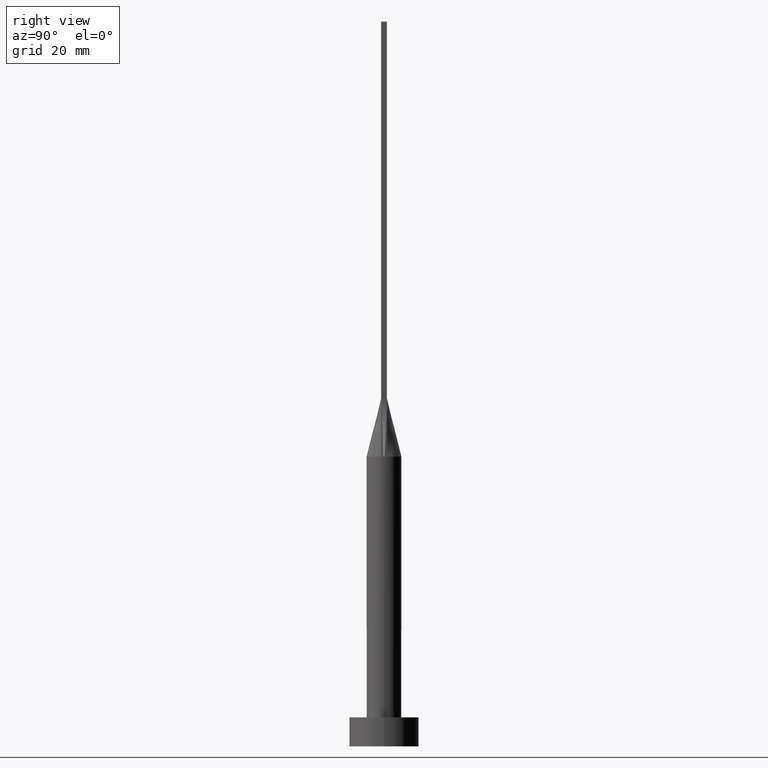
[diagram: clean part render]
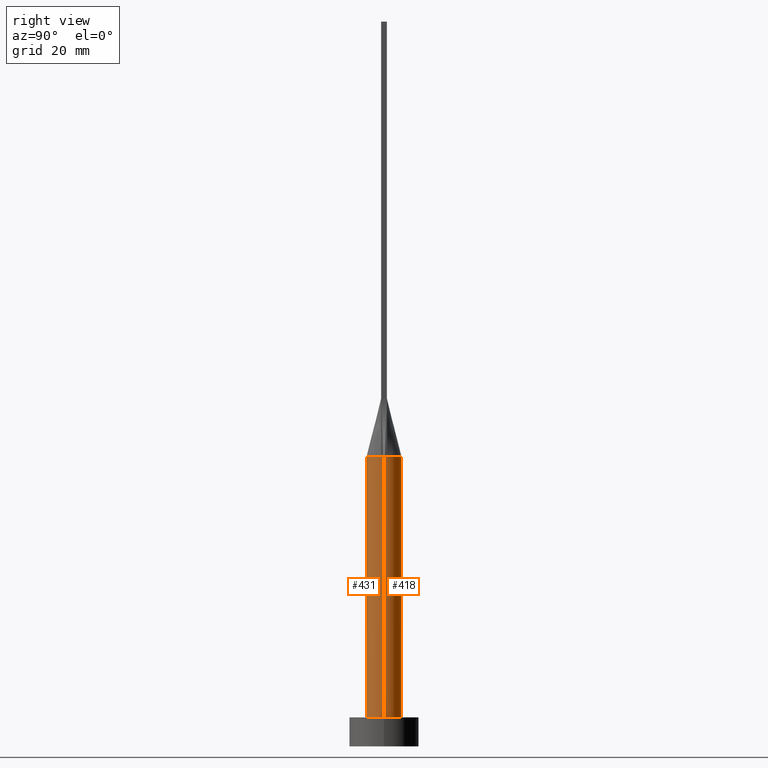
[diagram: same view with one multi-face feature highlighted, each face labeled with its STEP entity id]
A machine part, right view. The highlighted faces form ONE feature: a constant-radius fillet chain: 2 tangent blend faces with common blend radius 3 mm. The faces share edges in the B-rep.
Their STEP definitions:
[1] entity #418 (Cylinder):
#4 = ORIENTED_EDGE ( 'NONE', *, *, #206, .F. ) ;
#6 = CARTESIAN_POINT ( 'NONE',  ( 2.951871110830718514, 0.5367036202482695639, 49.99999999999999289 ) ) ;
#16 = CARTESIAN_POINT ( 'NONE',  ( -3.000000000000000444, 0.000000000000000000, 5.000000000000000000 ) ) ;
#19 = EDGE_CURVE ( 'NONE', #549, #546, #68, .T. ) ;
#24 = CARTESIAN_POINT ( 'NONE',  ( 0.8331239790496237640, 2.909606296598776787, 49.99999999999998579 ) ) ;
#33 = CARTESIAN_POINT ( 'NONE',  ( 0.000000000000000000, 0.000000000000000000, 49.99999999999999289 ) ) ;
#38 = EDGE_CURVE ( 'NONE', #286, #57, #346, .T. ) ;
#41 = VERTEX_POINT ( 'NONE', #461 ) ;
#57 = VERTEX_POINT ( 'NONE', #16 ) ;
#63 = CARTESIAN_POINT ( 'NONE',  ( -2.382399439808186692, 1.857547746650221265, 49.99999999999999289 ) ) ;
#68 = B_SPLINE_CURVE_WITH_KNOTS ( 'NONE', 3,
 ( #239, #317, #190, #279, #364, #370, #510, #24, #275, #515, #360, #413, #189, #63, #368, #143, #554, #315 ),
 .UNSPECIFIED., .F., .F.,
 ( 4, 2, 2, 2, 2, 2, 2, 2, 4 ),
 ( 0.000000000000000000, 0.1250000000000000000, 0.2500000000000000000, 0.3750000000000000000, 0.5000000000000000000, 0.6250000000000000000, 0.7500000000000000000, 0.8750000000000000000, 1.000000000000000000 ),
 .UNSPECIFIED. ) ;
#71 = VECTOR ( 'NONE', #398, 1000.000000000000000 ) ;
#87 = CARTESIAN_POINT ( 'NONE',  ( 2.999804865149861666, 7.183978618307598805E-16, 49.99999999999999289 ) ) ;
#114 = DIRECTION ( 'NONE',  ( -0.000000000000000000, -0.000000000000000000, -1.000000000000000000 ) ) ;
#133 = DIRECTION ( 'NONE',  ( 0.000000000000000000, 0.000000000000000000, 1.000000000000000000 ) ) ;
#140 = ORIENTED_EDGE ( 'NONE', *, *, #38, .T. ) ;
#142 = VERTEX_POINT ( 'NONE', #87 ) ;
#143 = CARTESIAN_POINT ( 'NONE',  ( -2.829409566978765334, 1.041313647073049298, 50.00000000000002132 ) ) ;
#149 = DIRECTION ( 'NONE',  ( 1.000000000000000000, 0.000000000000000000, 0.000000000000000000 ) ) ;
#156 = CIRCLE ( 'NONE', #440, 3.000000000000000444 ) ;
#189 = CARTESIAN_POINT ( 'NONE',  ( -1.882426928433513336, 2.362790634184935623, 50.00000000000000000 ) ) ;
#190 = CARTESIAN_POINT ( 'NONE',  ( 2.829409566978765778, 1.041313647073049298, 50.00000000000002132 ) ) ;
#192 = CIRCLE ( 'NONE', #345, 3.000000000000000444 ) ;
#193 = DIRECTION ( 'NONE',  ( -1.000000000000000000, 0.000000000000000000, 0.000000000000000000 ) ) ;
#206 = EDGE_CURVE ( 'NONE', #41, #57, #478, .T. ) ;
#210 = EDGE_CURVE ( 'NONE', #546, #41, #192, .T. ) ;
#216 = EDGE_CURVE ( 'NONE', #142, #286, #230, .T. ) ;
#230 = LINE ( 'NONE', #299, #71 ) ;
#234 = ORIENTED_EDGE ( 'NONE', *, *, #556, .F. ) ;
#239 = CARTESIAN_POINT ( 'NONE',  ( 2.951871110830718514, 0.5367036202482695639, 49.99999999999999289 ) ) ;
#250 = CARTESIAN_POINT ( 'NONE',  ( -3.000000000000000444, 0.000000000000000000, 49.99999999999999289 ) ) ;
#253 = ORIENTED_EDGE ( 'NONE', *, *, #216, .T. ) ;
#275 = CARTESIAN_POINT ( 'NONE',  ( 0.4172881767044975820, 3.000000000000000000, 50.00000000000000000 ) ) ;
#279 = CARTESIAN_POINT ( 'NONE',  ( 2.567367750129863957, 1.580669302822274913, 49.99999999999999289 ) ) ;
#286 = VERTEX_POINT ( 'NONE', #305 ) ;
#287 = DIRECTION ( 'NONE',  ( 1.000000000000000000, 0.000000000000000000, 0.000000000000000000 ) ) ;
#290 = EDGE_LOOP ( 'NONE', ( #234, #253, #140, #4, #568, #348 ) ) ;
#297 = DIRECTION ( 'NONE',  ( 0.000000000000000000, 0.000000000000000000, 1.000000000000000000 ) ) ;
#299 = CARTESIAN_POINT ( 'NONE',  ( 3.000000000000000444, 3.673940397442059868E-16, 49.99999999999999289 ) ) ;
#305 = CARTESIAN_POINT ( 'NONE',  ( 3.000000000000000444, 3.673940397442059868E-16, 5.000000000000000000 ) ) ;
#315 = CARTESIAN_POINT ( 'NONE',  ( -2.951881273711814302, 0.5367053345652096352, 49.99999999999999289 ) ) ;
#317 = CARTESIAN_POINT ( 'NONE',  ( 2.907609730299723250, 0.7786563145999496616, 49.99999999999999289 ) ) ;
#319 = AXIS2_PLACEMENT_3D ( 'NONE', #467, #114, #193 ) ;
#327 = FACE_OUTER_BOUND ( 'NONE', #290, .T. ) ;
#341 = CARTESIAN_POINT ( 'NONE',  ( -2.951881273711814302, 0.5367053345652096352, 49.99999999999999289 ) ) ;
#345 = AXIS2_PLACEMENT_3D ( 'NONE', #33, #133, #351 ) ;
#346 = CIRCLE ( 'NONE', #375, 3.000000000000000444 ) ;
#348 = ORIENTED_EDGE ( 'NONE', *, *, #19, .F. ) ;
#351 = DIRECTION ( 'NONE',  ( 1.000000000000000000, 0.000000000000000000, 0.000000000000000000 ) ) ;
#360 = CARTESIAN_POINT ( 'NONE',  ( -0.8331239790496237640, 2.909606296598777231, 50.00000000000000000 ) ) ;
#364 = CARTESIAN_POINT ( 'NONE',  ( 2.382399439808187580, 1.857547746650221709, 50.00000000000000000 ) ) ;
#368 = CARTESIAN_POINT ( 'NONE',  ( -2.567367750129864401, 1.580669302822275357, 50.00000000000001421 ) ) ;
#370 = CARTESIAN_POINT ( 'NONE',  ( 1.882426928433512892, 2.362790634184934291, 49.99999999999998579 ) ) ;
#375 = AXIS2_PLACEMENT_3D ( 'NONE', #470, #560, #149 ) ;
#398 = DIRECTION ( 'NONE',  ( -0.000000000000000000, -0.000000000000000000, -1.000000000000000000 ) ) ;
#413 = CARTESIAN_POINT ( 'NONE',  ( -1.566158656300002061, 2.589797565249319700, 49.99999999999998579 ) ) ;
#418 = ADVANCED_FACE ( 'NONE', ( #327 ), #513, .T. ) ;
#428 = DIRECTION ( 'NONE',  ( -0.000000000000000000, -0.000000000000000000, -1.000000000000000000 ) ) ;
#440 = AXIS2_PLACEMENT_3D ( 'NONE', #572, #297, #287 ) ;
#449 = VECTOR ( 'NONE', #428, 1000.000000000000000 ) ;
#461 = CARTESIAN_POINT ( 'NONE',  ( -2.999804865149861666, -2.046477192139110915E-15, 49.99999999999999289 ) ) ;
#467 = CARTESIAN_POINT ( 'NONE',  ( 0.000000000000000000, 0.000000000000000000, 49.99999999999999289 ) ) ;
#470 = CARTESIAN_POINT ( 'NONE',  ( 0.000000000000000000, 0.000000000000000000, 5.000000000000000000 ) ) ;
#478 = LINE ( 'NONE', #250, #449 ) ;
#510 = CARTESIAN_POINT ( 'NONE',  ( 1.566158656300002061, 2.589797565249318811, 50.00000000000000000 ) ) ;
#513 = CYLINDRICAL_SURFACE ( 'NONE', #319, 3.000000000000000444 ) ;
#515 = CARTESIAN_POINT ( 'NONE',  ( -0.4172881767044976375, 2.999999999999999556, 49.99999999999998579 ) ) ;
#546 = VERTEX_POINT ( 'NONE', #341 ) ;
#549 = VERTEX_POINT ( 'NONE', #6 ) ;
#554 = CARTESIAN_POINT ( 'NONE',  ( -2.907609730299723250, 0.7786563145999495505, 50.00000000000000000 ) ) ;
#556 = EDGE_CURVE ( 'NONE', #142, #549, #156, .T. ) ;
#560 = DIRECTION ( 'NONE',  ( 0.000000000000000000, 0.000000000000000000, 1.000000000000000000 ) ) ;
#568 = ORIENTED_EDGE ( 'NONE', *, *, #210, .F. ) ;
#572 = CARTESIAN_POINT ( 'NONE',  ( 0.000000000000000000, 0.000000000000000000, 49.99999999999999289 ) ) ;
[2] entity #431 (Cylinder):
#7 = CARTESIAN_POINT ( 'NONE',  ( 2.951896064709005785, -0.5367080392066733152, 49.99999999999999289 ) ) ;
#16 = CARTESIAN_POINT ( 'NONE',  ( -3.000000000000000444, 0.000000000000000000, 5.000000000000000000 ) ) ;
#34 = ORIENTED_EDGE ( 'NONE', *, *, #337, .T. ) ;
#41 = VERTEX_POINT ( 'NONE', #461 ) ;
#52 = CIRCLE ( 'NONE', #509, 3.000000000000000444 ) ;
#57 = VERTEX_POINT ( 'NONE', #16 ) ;
#71 = VECTOR ( 'NONE', #398, 1000.000000000000000 ) ;
#74 = CYLINDRICAL_SURFACE ( 'NONE', #186, 3.000000000000000444 ) ;
#87 = CARTESIAN_POINT ( 'NONE',  ( 2.999804865149861666, 7.183978618307598805E-16, 49.99999999999999289 ) ) ;
#105 = CIRCLE ( 'NONE', #426, 3.000000000000000444 ) ;
#107 = CARTESIAN_POINT ( 'NONE',  ( 0.000000000000000000, 0.000000000000000000, 49.99999999999999289 ) ) ;
#112 = EDGE_CURVE ( 'NONE', #41, #484, #52, .T. ) ;
#142 = VERTEX_POINT ( 'NONE', #87 ) ;
#148 = DIRECTION ( 'NONE',  ( -0.000000000000000000, -0.000000000000000000, -1.000000000000000000 ) ) ;
#157 = CARTESIAN_POINT ( 'NONE',  ( 0.000000000000000000, 0.000000000000000000, 49.99999999999999289 ) ) ;
#160 = DIRECTION ( 'NONE',  ( 0.000000000000000000, 0.000000000000000000, 1.000000000000000000 ) ) ;
#168 = ORIENTED_EDGE ( 'NONE', *, *, #216, .F. ) ;
#186 = AXIS2_PLACEMENT_3D ( 'NONE', #278, #148, #322 ) ;
#204 = AXIS2_PLACEMENT_3D ( 'NONE', #569, #160, #469 ) ;
#206 = EDGE_CURVE ( 'NONE', #41, #57, #478, .T. ) ;
#216 = EDGE_CURVE ( 'NONE', #142, #286, #230, .T. ) ;
#229 = VERTEX_POINT ( 'NONE', #7 ) ;
#230 = LINE ( 'NONE', #299, #71 ) ;
#233 = DIRECTION ( 'NONE',  ( 0.000000000000000000, 0.000000000000000000, 1.000000000000000000 ) ) ;
#243 = AXIS2_PLACEMENT_3D ( 'NONE', #157, #233, #371 ) ;
#250 = CARTESIAN_POINT ( 'NONE',  ( -3.000000000000000444, 0.000000000000000000, 49.99999999999999289 ) ) ;
#263 = EDGE_LOOP ( 'NONE', ( #168, #358, #444, #424, #333, #34 ) ) ;
#277 = DIRECTION ( 'NONE',  ( 0.000000000000000000, 0.000000000000000000, 1.000000000000000000 ) ) ;
#278 = CARTESIAN_POINT ( 'NONE',  ( 0.000000000000000000, 0.000000000000000000, 49.99999999999999289 ) ) ;
#280 = DIRECTION ( 'NONE',  ( 1.000000000000000000, 3.552713678800500929E-15, 0.000000000000000000 ) ) ;
#286 = VERTEX_POINT ( 'NONE', #305 ) ;
#299 = CARTESIAN_POINT ( 'NONE',  ( 3.000000000000000444, 3.673940397442059868E-16, 49.99999999999999289 ) ) ;
#305 = CARTESIAN_POINT ( 'NONE',  ( 3.000000000000000444, 3.673940397442059868E-16, 5.000000000000000000 ) ) ;
#322 = DIRECTION ( 'NONE',  ( -1.000000000000000000, 0.000000000000000000, 0.000000000000000000 ) ) ;
#333 = ORIENTED_EDGE ( 'NONE', *, *, #206, .T. ) ;
#337 = EDGE_CURVE ( 'NONE', #57, #286, #415, .T. ) ;
#358 = ORIENTED_EDGE ( 'NONE', *, *, #402, .F. ) ;
#371 = DIRECTION ( 'NONE',  ( 1.000000000000000000, 0.000000000000000000, 0.000000000000000000 ) ) ;
#379 = CARTESIAN_POINT ( 'NONE',  ( 0.000000000000000000, 0.000000000000000000, 49.99999999999999289 ) ) ;
#386 = DIRECTION ( 'NONE',  ( 1.000000000000000000, 0.000000000000000000, 0.000000000000000000 ) ) ;
#398 = DIRECTION ( 'NONE',  ( -0.000000000000000000, -0.000000000000000000, -1.000000000000000000 ) ) ;
#402 = EDGE_CURVE ( 'NONE', #229, #142, #105, .T. ) ;
#415 = CIRCLE ( 'NONE', #204, 3.000000000000000444 ) ;
#424 = ORIENTED_EDGE ( 'NONE', *, *, #112, .F. ) ;
#426 = AXIS2_PLACEMENT_3D ( 'NONE', #379, #518, #280 ) ;
#427 = EDGE_CURVE ( 'NONE', #484, #229, #503, .T. ) ;
#428 = DIRECTION ( 'NONE',  ( -0.000000000000000000, -0.000000000000000000, -1.000000000000000000 ) ) ;
#431 = ADVANCED_FACE ( 'NONE', ( #558 ), #74, .T. ) ;
#444 = ORIENTED_EDGE ( 'NONE', *, *, #427, .F. ) ;
#449 = VECTOR ( 'NONE', #428, 1000.000000000000000 ) ;
#461 = CARTESIAN_POINT ( 'NONE',  ( -2.999804865149861666, -2.046477192139110915E-15, 49.99999999999999289 ) ) ;
#469 = DIRECTION ( 'NONE',  ( 1.000000000000000000, 0.000000000000000000, 0.000000000000000000 ) ) ;
#476 = CARTESIAN_POINT ( 'NONE',  ( -2.951885853416577277, -0.5367063210726344957, 49.99999999999999289 ) ) ;
#478 = LINE ( 'NONE', #250, #449 ) ;
#484 = VERTEX_POINT ( 'NONE', #476 ) ;
#503 = CIRCLE ( 'NONE', #243, 3.000000000000000444 ) ;
#509 = AXIS2_PLACEMENT_3D ( 'NONE', #107, #277, #386 ) ;
#518 = DIRECTION ( 'NONE',  ( 0.000000000000000000, 0.000000000000000000, 1.000000000000000000 ) ) ;
#558 = FACE_OUTER_BOUND ( 'NONE', #263, .T. ) ;
#569 = CARTESIAN_POINT ( 'NONE',  ( 0.000000000000000000, 0.000000000000000000, 5.000000000000000000 ) ) ;